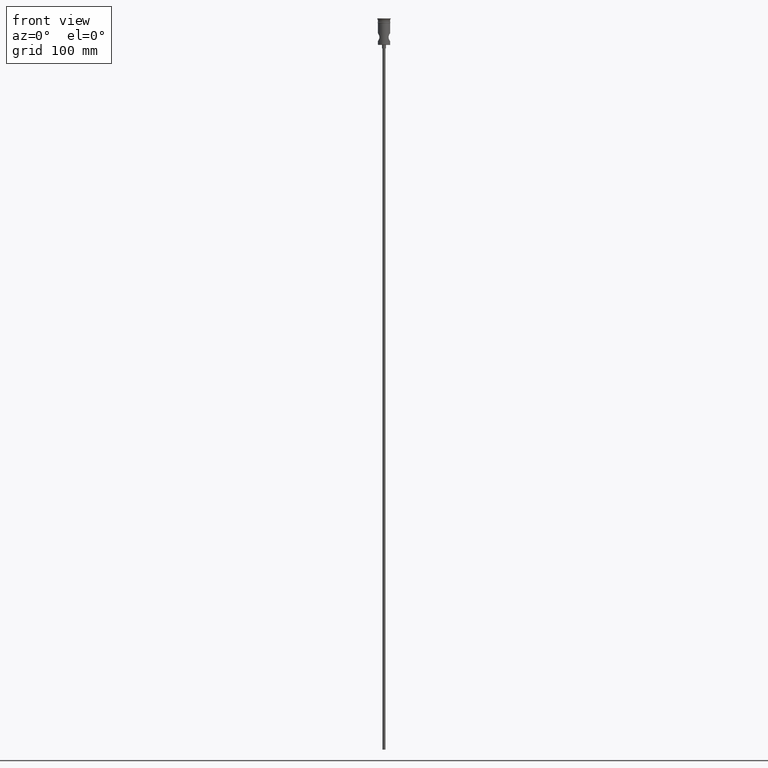
[diagram: clean part render]
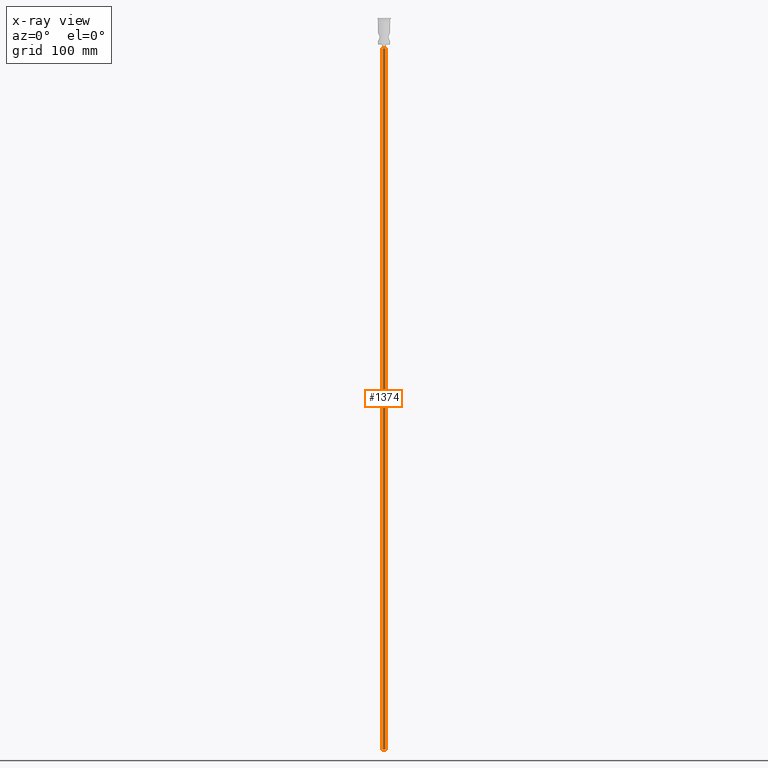
[diagram: x-ray — body ghosted, one internal face saturated and labeled with its STEP entity id]
A machine part, front view, then the same camera in x-ray: the body is ghosted and one INTERNAL B-rep face — a face not visible from any outside direction — is saturated and labeled: STEP entity #1374.
In plain terms, the highlighted cylindrical surface (edge-blend (fillet) strip) has radius 1.25 mm, axis along (-0, -0, 1).
Its self-contained STEP definition (entity closure, byte-faithful):
#46 = ORIENTED_EDGE ( 'NONE', *, *, #1336, .F. ) ;
#56 = DIRECTION ( 'NONE',  ( -0.000000000000000000, -0.000000000000000000, 1.000000000000000000 ) ) ;
#69 = CARTESIAN_POINT ( 'NONE',  ( 1.250000000000000000, 0.000000000000000000, -622.4999999999998863 ) ) ;
#144 = CARTESIAN_POINT ( 'NONE',  ( 0.000000000000000000, 0.000000000000000000, -25.50000000000000000 ) ) ;
#171 = CARTESIAN_POINT ( 'NONE',  ( 1.250000000000000000, 0.000000000000000000, -25.50000000000000000 ) ) ;
#277 = CARTESIAN_POINT ( 'NONE',  ( 0.000000000000000000, 0.000000000000000000, -622.4999999999998863 ) ) ;
#339 = DIRECTION ( 'NONE',  ( 0.000000000000000000, 0.000000000000000000, -1.000000000000000000 ) ) ;
#403 = ORIENTED_EDGE ( 'NONE', *, *, #1147, .T. ) ;
#432 = EDGE_CURVE ( 'NONE', #638, #1215, #1357, .T. ) ;
#524 = CARTESIAN_POINT ( 'NONE',  ( -1.250000000000000000, 1.530808498934191571E-16, -25.50000000000000000 ) ) ;
#585 = EDGE_CURVE ( 'NONE', #926, #1215, #1396, .T. ) ;
#601 = DIRECTION ( 'NONE',  ( 0.000000000000000000, 0.000000000000000000, -1.000000000000000000 ) ) ;
#638 = VERTEX_POINT ( 'NONE', #524 ) ;
#681 = CARTESIAN_POINT ( 'NONE',  ( -1.250000000000000000, 1.530808498934191571E-16, -622.4999999999998863 ) ) ;
#700 = VECTOR ( 'NONE', #1110, 1000.000000000000000 ) ;
#727 = DIRECTION ( 'NONE',  ( -0.000000000000000000, -0.000000000000000000, 1.000000000000000000 ) ) ;
#766 = CARTESIAN_POINT ( 'NONE',  ( -1.250000000000000000, 1.530808498934191571E-16, -622.4999999999998863 ) ) ;
#831 = CARTESIAN_POINT ( 'NONE',  ( 1.250000000000000000, 0.000000000000000000, -622.4999999999998863 ) ) ;
#865 = DIRECTION ( 'NONE',  ( 1.000000000000000000, 0.000000000000000000, 0.000000000000000000 ) ) ;
#917 = AXIS2_PLACEMENT_3D ( 'NONE', #277, #601, #1044 ) ;
#926 = VERTEX_POINT ( 'NONE', #831 ) ;
#961 = AXIS2_PLACEMENT_3D ( 'NONE', #964, #727, #865 ) ;
#964 = CARTESIAN_POINT ( 'NONE',  ( 0.000000000000000000, 0.000000000000000000, -622.4999999999998863 ) ) ;
#1044 = DIRECTION ( 'NONE',  ( -1.000000000000000000, 0.000000000000000000, 0.000000000000000000 ) ) ;
#1085 = ORIENTED_EDGE ( 'NONE', *, *, #585, .F. ) ;
#1110 = DIRECTION ( 'NONE',  ( -0.000000000000000000, -0.000000000000000000, 1.000000000000000000 ) ) ;
#1112 = EDGE_LOOP ( 'NONE', ( #46, #403, #1276, #1085 ) ) ;
#1147 = EDGE_CURVE ( 'NONE', #1163, #638, #1322, .T. ) ;
#1163 = VERTEX_POINT ( 'NONE', #681 ) ;
#1189 = VECTOR ( 'NONE', #56, 1000.000000000000000 ) ;
#1197 = FACE_OUTER_BOUND ( 'NONE', #1112, .T. ) ;
#1215 = VERTEX_POINT ( 'NONE', #171 ) ;
#1276 = ORIENTED_EDGE ( 'NONE', *, *, #432, .T. ) ;
#1290 = CYLINDRICAL_SURFACE ( 'NONE', #961, 1.250000000000000000 ) ;
#1322 = LINE ( 'NONE', #766, #700 ) ;
#1336 = EDGE_CURVE ( 'NONE', #1163, #926, #1385, .T. ) ;
#1341 = DIRECTION ( 'NONE',  ( -1.000000000000000000, 0.000000000000000000, 0.000000000000000000 ) ) ;
#1357 = CIRCLE ( 'NONE', #1430, 1.250000000000000000 ) ;
#1374 = ADVANCED_FACE ( 'NONE', ( #1197 ), #1290, .T. ) ;
#1385 = CIRCLE ( 'NONE', #917, 1.250000000000000000 ) ;
#1396 = LINE ( 'NONE', #69, #1189 ) ;
#1430 = AXIS2_PLACEMENT_3D ( 'NONE', #144, #339, #1341 ) ;